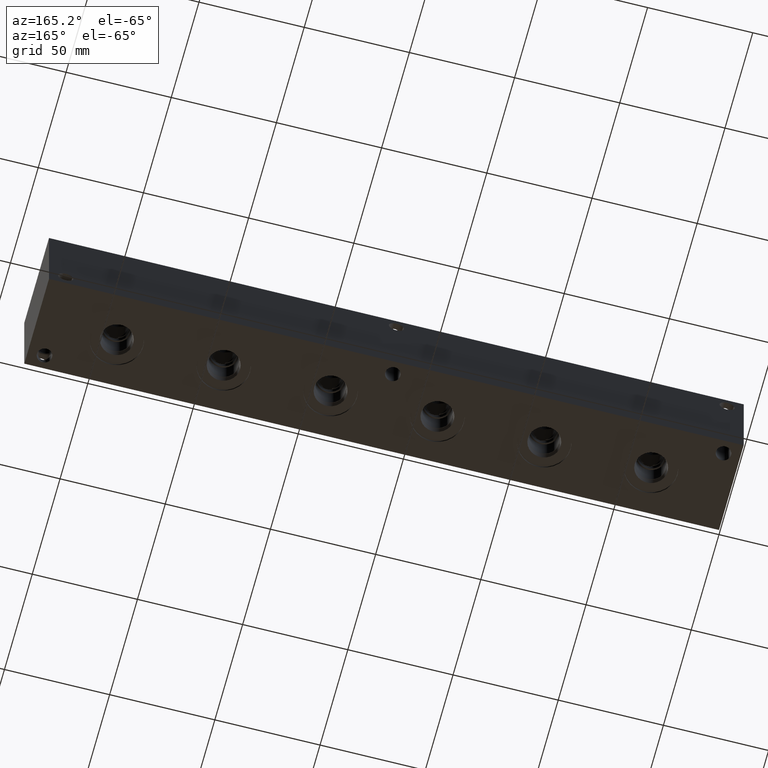
[diagram: clean part render]
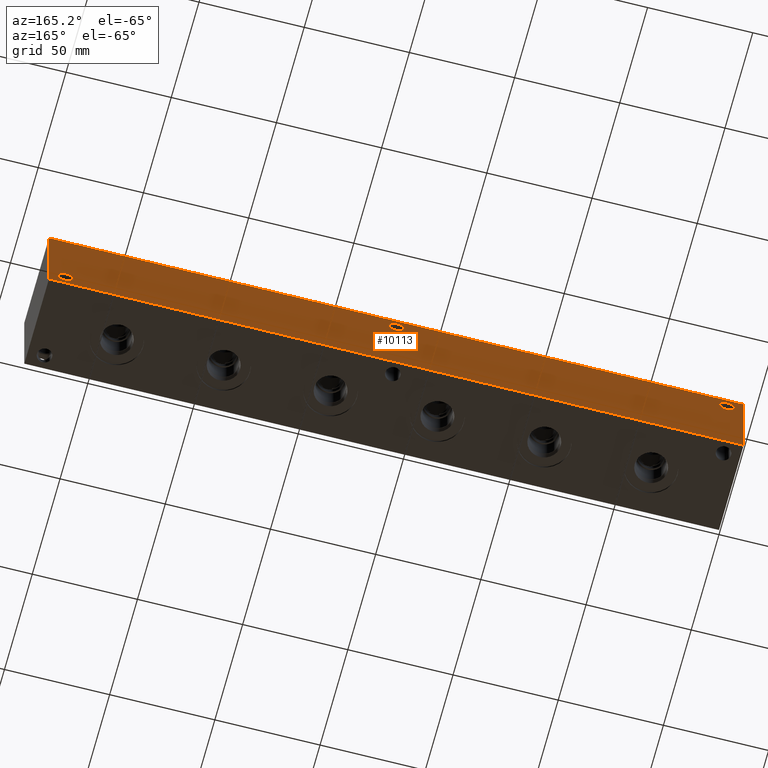
[diagram: same view with one face highlighted and labeled with its STEP entity id]
A machine part, auxiliary view. The second image highlights one B-rep face of the part: STEP entity #10113.
In plain terms, the highlighted planar face has unit normal (0, 1, 0).
Its self-contained STEP definition (entity closure, byte-faithful):
#547=CIRCLE('',#10824,3.5687);
#550=CIRCLE('',#10833,3.5687);
#553=CIRCLE('',#10842,3.5687);
#692=FACE_BOUND('',#2237,.T.);
#693=FACE_BOUND('',#2238,.T.);
#694=FACE_BOUND('',#2239,.T.);
#1626=FACE_OUTER_BOUND('',#2236,.T.);
#2236=EDGE_LOOP('',(#8984,#8985,#8986,#8987));
#2237=EDGE_LOOP('',(#8988));
#2238=EDGE_LOOP('',(#8989));
#2239=EDGE_LOOP('',(#8990));
#2508=LINE('',#15727,#3261);
#3009=LINE('',#18012,#3762);
#3010=LINE('',#18015,#3763);
#3011=LINE('',#18016,#3764);
#3261=VECTOR('',#11338,10.);
#3762=VECTOR('',#13403,10.);
#3763=VECTOR('',#13406,10.);
#3764=VECTOR('',#13407,10.);
#4074=VERTEX_POINT('',#15724);
#4075=VERTEX_POINT('',#15726);
#4648=VERTEX_POINT('',#17754);
#4653=VERTEX_POINT('',#17770);
#4658=VERTEX_POINT('',#17786);
#4718=VERTEX_POINT('',#18008);
#4720=VERTEX_POINT('',#18014);
#5180=EDGE_CURVE('',#4074,#4075,#2508,.T.);
#6034=EDGE_CURVE('',#4648,#4648,#547,.T.);
#6043=EDGE_CURVE('',#4653,#4653,#550,.T.);
#6052=EDGE_CURVE('',#4658,#4658,#553,.T.);
#6155=EDGE_CURVE('',#4718,#4075,#3009,.T.);
#6156=EDGE_CURVE('',#4720,#4718,#3010,.T.);
#6157=EDGE_CURVE('',#4720,#4074,#3011,.T.);
#8984=ORIENTED_EDGE('',*,*,#6156,.T.);
#8985=ORIENTED_EDGE('',*,*,#6155,.T.);
#8986=ORIENTED_EDGE('',*,*,#5180,.F.);
#8987=ORIENTED_EDGE('',*,*,#6157,.F.);
#8988=ORIENTED_EDGE('',*,*,#6034,.T.);
#8989=ORIENTED_EDGE('',*,*,#6043,.T.);
#8990=ORIENTED_EDGE('',*,*,#6052,.T.);
#9272=PLANE('',#10971);
#10113=ADVANCED_FACE('',(#1626,#692,#693,#694),#9272,.T.);
#10824=AXIS2_PLACEMENT_3D('',#17756,#13071,#13072);
#10833=AXIS2_PLACEMENT_3D('',#17772,#13091,#13092);
#10842=AXIS2_PLACEMENT_3D('',#17788,#13111,#13112);
#10971=AXIS2_PLACEMENT_3D('',#18013,#13404,#13405);
#11338=DIRECTION('',(-1.,0.,0.));
#13071=DIRECTION('center_axis',(0.,-1.,0.));
#13072=DIRECTION('ref_axis',(1.,0.,0.));
#13091=DIRECTION('center_axis',(0.,-1.,0.));
#13092=DIRECTION('ref_axis',(1.,0.,0.));
#13111=DIRECTION('center_axis',(0.,-1.,0.));
#13112=DIRECTION('ref_axis',(1.,0.,0.));
#13403=DIRECTION('',(0.,0.,1.));
#13404=DIRECTION('center_axis',(0.,1.,0.));
#13405=DIRECTION('ref_axis',(-1.,0.,0.));
#13406=DIRECTION('',(-1.,0.,0.));
#13407=DIRECTION('',(0.,0.,1.));
#15724=CARTESIAN_POINT('',(330.2,44.45,44.45));
#15726=CARTESIAN_POINT('',(0.,44.45,44.45));
#15727=CARTESIAN_POINT('',(330.2,44.45,44.45));
#17754=CARTESIAN_POINT('',(318.7065,44.45,6.35));
#17756=CARTESIAN_POINT('Origin',(322.2752,44.45,6.35));
#17770=CARTESIAN_POINT('',(4.3561,44.45,38.1));
#17772=CARTESIAN_POINT('Origin',(7.9248,44.45,38.1));
#17786=CARTESIAN_POINT('',(161.5313,44.45,38.1));
#17788=CARTESIAN_POINT('Origin',(165.1,44.45,38.1));
#18008=CARTESIAN_POINT('',(0.,44.45,0.));
#18012=CARTESIAN_POINT('',(0.,44.45,0.));
#18013=CARTESIAN_POINT('Origin',(330.2,44.45,0.));
#18014=CARTESIAN_POINT('',(330.2,44.45,0.));
#18015=CARTESIAN_POINT('',(330.2,44.45,0.));
#18016=CARTESIAN_POINT('',(330.2,44.45,0.));